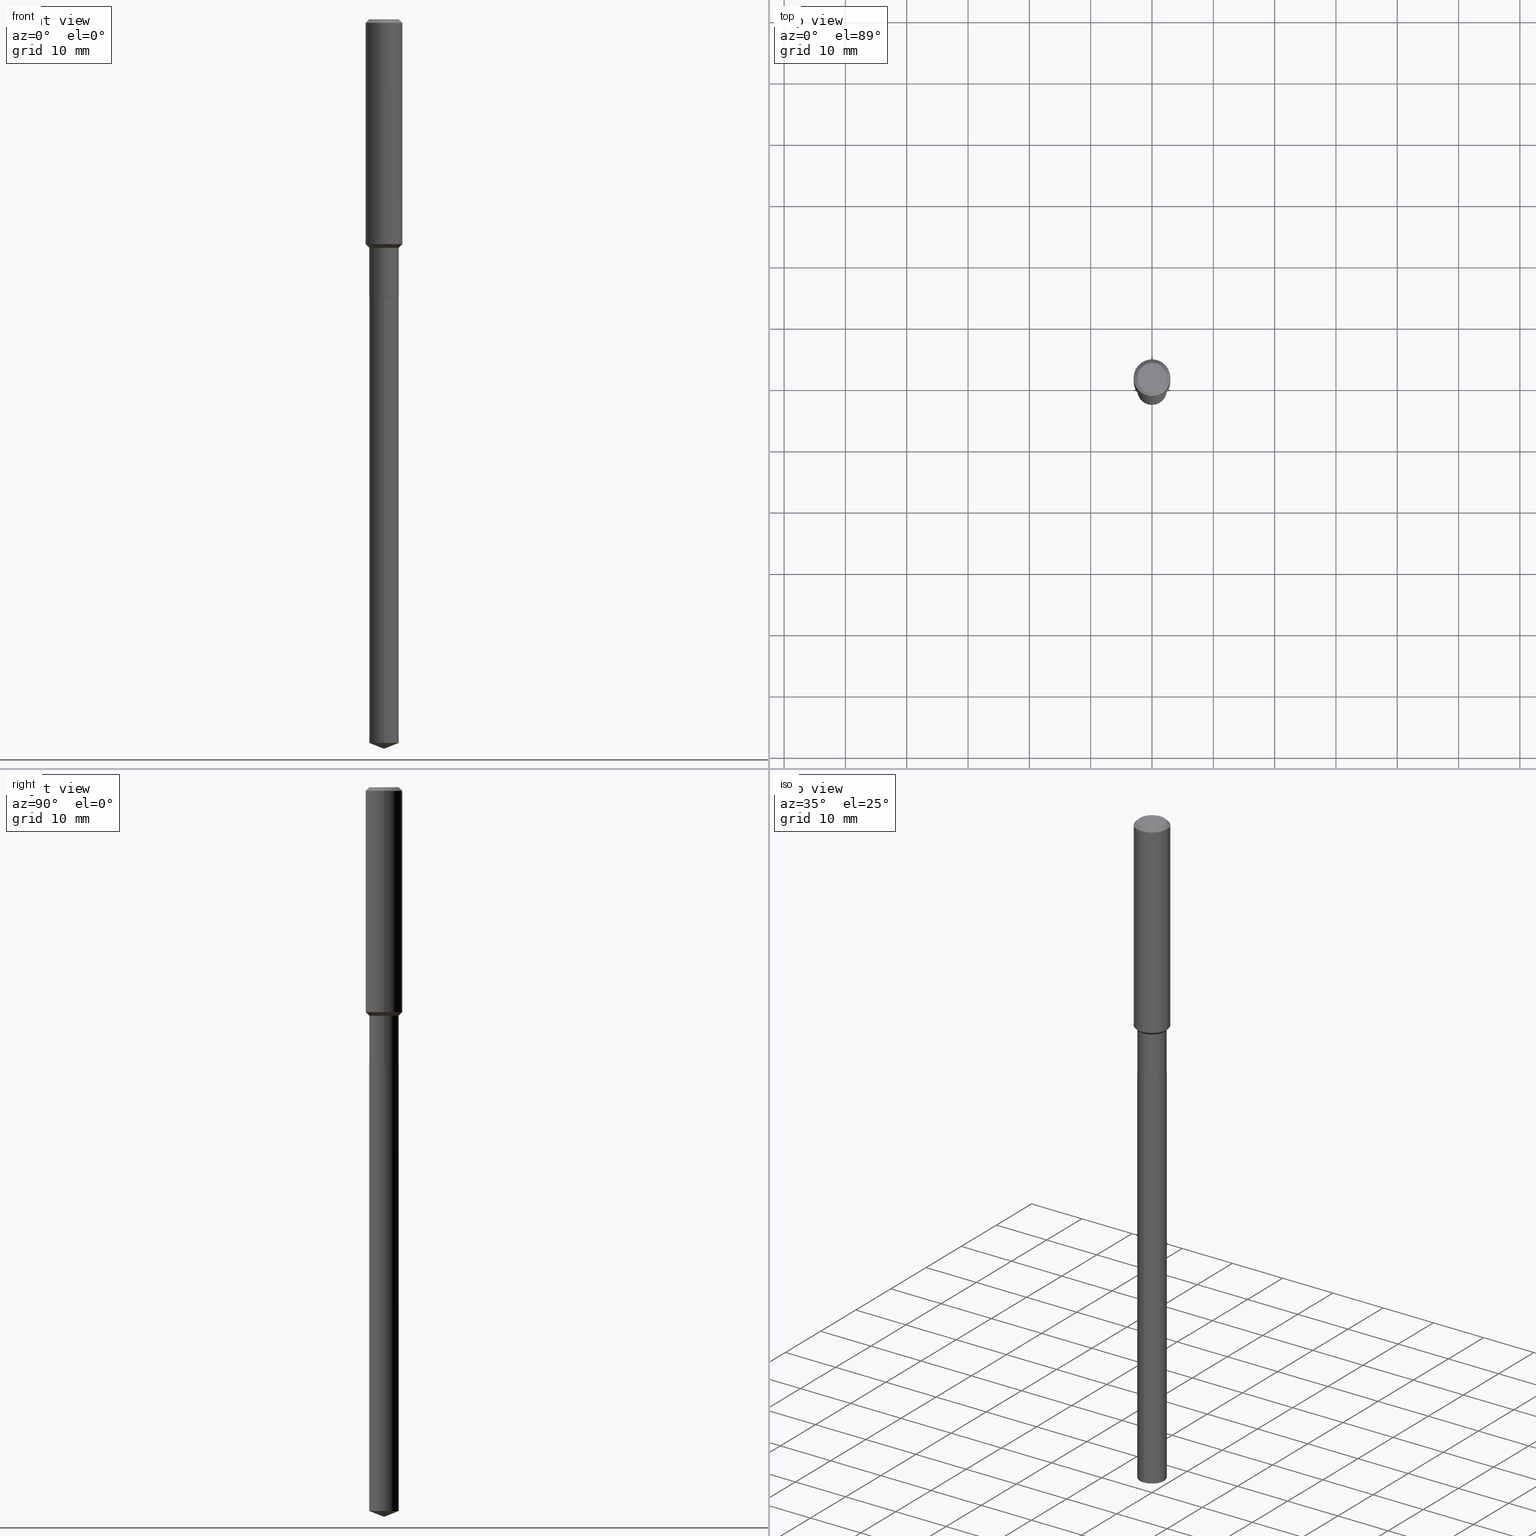
[diagram: canonical four-view strip — front | top / right | iso, engineering-drawing reading convention]
A machine part, canonical four-view strip (front | top / right | iso — engineering-drawing reading convention). The complete STEP part file that produces these views, byte-faithful:
ISO-10303-21;
HEADER;
FILE_DESCRIPTION (( 'STEP AP203' ),
    '1' );
FILE_NAME ('66727.STEP',
    '2024-04-25T04:40:25',
    ( '' ),
    ( '' ),
    'SwSTEP 2.0',
    'SolidWorks 2023',
    '' );
FILE_SCHEMA (( 'CONFIG_CONTROL_DESIGN' ));
ENDSEC;

DATA;
#1 = DIRECTION ( 'NONE',  ( 1.000000000000000000, -6.982962677686266711E-15, 0.000000000000000000 ) ) ;
#2 = EDGE_CURVE ( 'NONE', #72, #170, #306, .T. ) ;
#3 = ORIENTED_EDGE ( 'NONE', *, *, #266, .T. ) ;
#4 = CARTESIAN_POINT ( 'NONE',  ( -6.598899730413084303E-16, -0.09450000000000620404, -1.779499999999998527 ) ) ;
#5 = EDGE_LOOP ( 'NONE', ( #240, #195, #453, #149 ) ) ;
#6 = DIRECTION ( 'NONE',  ( 2.445477424987146413E-29, -3.491468996228115319E-15, -1.000000000000000000 ) ) ;
#7 = VERTEX_POINT ( 'NONE', #468 ) ;
#8 = ADVANCED_FACE ( 'NONE', ( #17 ), #307, .T. ) ;
#9 = AXIS2_PLACEMENT_3D ( 'NONE', #442, #298, #439 ) ;
#10 = DIMENSIONAL_EXPONENTS ( 1.000000000000000000, 0.000000000000000000, 0.000000000000000000, 0.000000000000000000, 0.000000000000000000, 0.000000000000000000, 0.000000000000000000 ) ;
#11 = DATE_AND_TIME ( #94, #419 ) ;
#12 = ORIENTED_EDGE ( 'NONE', *, *, #24, .F. ) ;
#13 = CARTESIAN_POINT ( 'NONE',  ( 4.351711740606446955E-29, -6.213091042471373382E-15, -1.779499999999998527 ) ) ;
#14 = CARTESIAN_POINT ( 'NONE',  ( -8.482159238011494275E-28, 1.211018550893073187E-13, 34.68507874015747916 ) ) ;
#15 = APPLICATION_PROTOCOL_DEFINITION ( 'international standard', 'config_control_design', 1994, #310 ) ;
#16 = ADVANCED_FACE ( 'NONE', ( #135 ), #136, .T. ) ;
#17 = FACE_OUTER_BOUND ( 'NONE', #366, .T. ) ;
#18 = VECTOR ( 'NONE', #77, 39.37007874015748854 ) ;
#19 = ADVANCED_FACE ( 'NONE', ( #125 ), #200, .T. ) ;
#20 = CARTESIAN_POINT ( 'NONE',  ( 3.531256956131335232E-29, -5.041699053289499522E-15, -1.443999999999999062 ) ) ;
#21 = ORIENTED_EDGE ( 'NONE', *, *, #142, .T. ) ;
#22 = APPROVAL_DATE_TIME ( #11, #386 ) ;
#23 = CARTESIAN_POINT ( 'NONE',  ( 0.09399999999999998634, -6.869489534173882389E-15, -1.779499999999998527 ) ) ;
#24 = EDGE_CURVE ( 'NONE', #30, #174, #338, .T. ) ;
#25 = CARTESIAN_POINT ( 'NONE',  ( 5.776197320209327532E-31, -8.246878922347559293E-17, -0.02362000000000014088 ) ) ;
#26 = ADVANCED_FACE ( 'NONE', ( #238 ), #482, .T. ) ;
#27 = PERSON_AND_ORGANIZATION_ROLE ( 'classification_officer' ) ;
#28 = DIRECTION ( 'NONE',  ( -2.445477424987146974E-29, 3.491468996228114924E-15, 1.000000000000000000 ) ) ;
#29 = CONICAL_SURFACE ( 'NONE', #302, 0.1180999999999999966, 0.7853981633974460586 ) ;
#30 = VERTEX_POINT ( 'NONE', #284 ) ;
#31 = DIRECTION ( 'NONE',  ( 2.445468806185136597E-29, -3.491481338843145583E-15, -1.000000000000000000 ) ) ;
#32 = VERTEX_POINT ( 'NONE', #433 ) ;
#33 = PERSON_AND_ORGANIZATION ( #48, #168 ) ;
#34 = EDGE_CURVE ( 'NONE', #174, #32, #347, .T. ) ;
#35 = DIRECTION ( 'NONE',  ( -6.982962677686265922E-15, -1.000000000000000000, 5.781688875479922944E-15 ) ) ;
#36 = ORIENTED_EDGE ( 'NONE', *, *, #410, .F. ) ;
#37 = DIRECTION ( 'NONE',  ( -2.445468806185136597E-29, 3.491481338843145583E-15, 1.000000000000000000 ) ) ;
#38 = EDGE_CURVE ( 'NONE', #336, #402, #316, .T. ) ;
#39 = AXIS2_PLACEMENT_3D ( 'NONE', #295, #365, #111 ) ;
#40 = ORIENTED_EDGE ( 'NONE', *, *, #107, .T. ) ;
#41 = CARTESIAN_POINT ( 'NONE',  ( 3.531256956131335232E-29, -5.041699053289499522E-15, -1.443999999999999062 ) ) ;
#42 = ORIENTED_EDGE ( 'NONE', *, *, #213, .F. ) ;
#43 = FACE_OUTER_BOUND ( 'NONE', #438, .T. ) ;
#44 = CARTESIAN_POINT ( 'NONE',  ( -0.1180999999999999966, 7.422191030112725094E-16, -0.02362000000000014088 ) ) ;
#45 = ADVANCED_FACE ( 'NONE', ( #55 ), #435, .T. ) ;
#46 = CARTESIAN_POINT ( 'NONE',  ( -0.09399999999999998634, -5.542531643682768201E-15, -1.779499999999998527 ) ) ;
#47 = CIRCLE ( 'NONE', #490, 0.09449999999999995903 ) ;
#48 = PERSON ( 'UNSPECIFIED', 'UNSPECIFIED', 'UNSPECIFIED', ('UNSPECIFIED'), ('UNSPECIFIED'), ('UNSPECIFIED') ) ;
#49 = CARTESIAN_POINT ( 'NONE',  ( 1.136601462681407655E-28, -1.622758588389320195E-14, -4.647775460054386798 ) ) ;
#50 = EDGE_LOOP ( 'NONE', ( #21, #81, #212, #247 ) ) ;
#51 = CARTESIAN_POINT ( 'NONE',  ( 5.776197320209327532E-31, -8.246878922347559293E-17, -0.02362000000000014088 ) ) ;
#52 = ADVANCED_FACE ( 'NONE', ( #285 ), #95, .T. ) ;
#53 = VECTOR ( 'NONE', #85, 39.37007874015748143 ) ;
#54 = CARTESIAN_POINT ( 'NONE',  ( 4.351711740606446955E-29, -6.213091042471373382E-15, -1.779499999999998527 ) ) ;
#55 = FACE_OUTER_BOUND ( 'NONE', #138, .T. ) ;
#56 = EDGE_CURVE ( 'NONE', #64, #224, #462, .T. ) ;
#57 = DIRECTION ( 'NONE',  ( -1.000000000000000000, 6.982962677686265922E-15, -4.876176775795935793E-29 ) ) ;
#58 = CARTESIAN_POINT ( 'NONE',  ( -0.09447999999999998066, 7.009847083995354710E-16, -1.928573779297727792E-17 ) ) ;
#59 = DIRECTION ( 'NONE',  ( 1.000000000000000000, -6.982962677686263555E-15, 0.000000000000000000 ) ) ;
#60 = AXIS2_PLACEMENT_3D ( 'NONE', #341, #377, #1 ) ;
#61 = CARTESIAN_POINT ( 'NONE',  ( 7.963035208442355086E-29, -1.041470292763339013E-15, -1.779499999999998971 ) ) ;
#62 = CC_DESIGN_PERSON_AND_ORGANIZATION_ASSIGNMENT ( #156, #314, ( #422 ) ) ;
#63 = CARTESIAN_POINT ( 'NONE',  ( 4.351711740606446955E-29, -6.213091042471373382E-15, -1.779499999999998527 ) ) ;
#64 = VERTEX_POINT ( 'NONE', #360 ) ;
#65 = PERSON_AND_ORGANIZATION ( #48, #168 ) ;
#66 = AXIS2_PLACEMENT_3D ( 'NONE', #41, #185, #374 ) ;
#67 = CARTESIAN_POINT ( 'NONE',  ( 5.776197320209327532E-31, -8.246878922347559293E-17, -0.02362000000000014088 ) ) ;
#68 = ORIENTED_EDGE ( 'NONE', *, *, #89, .F. ) ;
#69 = VECTOR ( 'NONE', #457, 39.37007874015748143 ) ;
#70 = CALENDAR_DATE ( 2024, 25, 4 ) ;
#71 = DIRECTION ( 'NONE',  ( -2.445468806185136877E-29, 3.491481338843145188E-15, 1.000000000000000000 ) ) ;
#72 = VERTEX_POINT ( 'NONE', #58 ) ;
#73 = EDGE_CURVE ( 'NONE', #7, #103, #164, .T. ) ;
#74 = CC_DESIGN_APPROVAL ( #287, ( #226 ) ) ;
#75 = CYLINDRICAL_SURFACE ( 'NONE', #405, 0.09449999999999997291 ) ;
#76 = ORIENTED_EDGE ( 'NONE', *, *, #24, .T. ) ;
#77 = DIRECTION ( 'NONE',  ( -6.497071151882111159E-15, -0.9304175679820232414, 0.3665012267243003552 ) ) ;
#78 = CIRCLE ( 'NONE', #332, 0.09399999999999998634 ) ;
#79 = EDGE_LOOP ( 'NONE', ( #301, #117, #363, #485 ) ) ;
#80 = CARTESIAN_POINT ( 'NONE',  ( 7.943927676866505497E-29, -1.068833365513114813E-15, -1.779499999999998971 ) ) ;
#81 = ORIENTED_EDGE ( 'NONE', *, *, #446, .T. ) ;
#82 = CARTESIAN_POINT ( 'NONE',  ( -8.482159238011494275E-28, 1.211018550893073187E-13, 34.68507874015747916 ) ) ;
#83 = APPROVAL_PERSON_ORGANIZATION ( #65, #287, #479 ) ;
#84 = AXIS2_PLACEMENT_3D ( 'NONE', #445, #483, #146 ) ;
#85 = DIRECTION ( 'NONE',  ( -2.445468806185136877E-29, 3.491481338843145188E-15, 1.000000000000000000 ) ) ;
#86 = ORIENTED_EDGE ( 'NONE', *, *, #89, .T. ) ;
#87 = APPROVAL_ROLE ( '' ) ;
#88 = AXIS2_PLACEMENT_3D ( 'NONE', #54, #204, #353 ) ;
#89 = EDGE_CURVE ( 'NONE', #120, #293, #47, .T. ) ;
#90 = FACE_OUTER_BOUND ( 'NONE', #216, .T. ) ;
#91 = CIRCLE ( 'NONE', #171, 0.09447999999999998066 ) ;
#92 = CARTESIAN_POINT ( 'NONE',  ( -0.09449999999999995903, -4.452635127592904346E-15, -1.467599999999999349 ) ) ;
#93 = DIRECTION ( 'NONE',  ( 1.000000000000000000, -6.982962677686267499E-15, 4.875432709231658792E-29 ) ) ;
#94 = CALENDAR_DATE ( 2024, 25, 4 ) ;
#95 = CYLINDRICAL_SURFACE ( 'NONE', #155, 0.1181000000000000799 ) ;
#96 = PRODUCT_DEFINITION_SHAPE ( 'NONE', 'NONE',  #422 ) ;
#97 = DIRECTION ( 'NONE',  ( -2.445468806185136597E-29, 3.491481338843145583E-15, 1.000000000000000000 ) ) ;
#98 = AXIS2_PLACEMENT_3D ( 'NONE', #139, #37, #182 ) ;
#99 = DIRECTION ( 'NONE',  ( -2.445468806185136597E-29, 3.491481338843145583E-15, 1.000000000000000000 ) ) ;
#100 = ADVANCED_FACE ( 'NONE', ( #90 ), #130, .F. ) ;
#101 = DIRECTION ( 'NONE',  ( -2.445468806185136597E-29, 3.491481338843145583E-15, 1.000000000000000000 ) ) ;
#102 = DIRECTION ( 'NONE',  ( -2.445477424987146974E-29, 3.491468996228114924E-15, 1.000000000000000000 ) ) ;
#103 = VERTEX_POINT ( 'NONE', #278 ) ;
#104 = CARTESIAN_POINT ( 'NONE',  ( 1.107551854698093724E-28, -1.690392381018647535E-14, -4.684999999999998721 ) ) ;
#105 = EDGE_CURVE ( 'NONE', #32, #170, #373, .T. ) ;
#106 = ORIENTED_EDGE ( 'NONE', *, *, #364, .F. ) ;
#107 = EDGE_CURVE ( 'NONE', #72, #296, #205, .T. ) ;
#108 = DIRECTION ( 'NONE',  ( -2.445468806185136597E-29, 3.491481338843145583E-15, 1.000000000000000000 ) ) ;
#109 = ORIENTED_EDGE ( 'NONE', *, *, #294, .T. ) ;
#110 = PERSON_AND_ORGANIZATION_ROLE ( 'creator' ) ;
#111 = DIRECTION ( 'NONE',  ( -6.982962677686265922E-15, -1.000000000000000000, 2.890844437739961472E-15 ) ) ;
#112 = APPROVAL_DATE_TIME ( #367, #287 ) ;
#113 = DIRECTION ( 'NONE',  ( 1.000000000000000000, -6.982962677686269077E-15, 0.000000000000000000 ) ) ;
#114 = EDGE_LOOP ( 'NONE', ( #268, #194, #329 ) ) ;
#115 = EDGE_CURVE ( 'NONE', #30, #170, #328, .T. ) ;
#116 = AXIS2_PLACEMENT_3D ( 'NONE', #49, #192, #452 ) ;
#117 = ORIENTED_EDGE ( 'NONE', *, *, #115, .T. ) ;
#118 = ORIENTED_EDGE ( 'NONE', *, *, #406, .T. ) ;
#119 = DIRECTION ( 'NONE',  ( 6.982962677686265922E-15, 1.000000000000000000, -3.491468996228115319E-15 ) ) ;
#120 = VERTEX_POINT ( 'NONE', #371 ) ;
#121 = AXIS2_PLACEMENT_3D ( 'NONE', #210, #28, #326 ) ;
#122 = EDGE_CURVE ( 'NONE', #174, #30, #279, .T. ) ;
#123 = LINE ( 'NONE', #273, #407 ) ;
#124 = CARTESIAN_POINT ( 'NONE',  ( 2.358133508849003952E-46, -3.366789680499277518E-32, -9.642868896486260050E-18 ) ) ;
#125 = FACE_OUTER_BOUND ( 'NONE', #444, .T. ) ;
#126 = LOCAL_TIME ( 0, 40, 25.00000000000000000, #359 ) ;
#127 = DATE_AND_TIME ( #158, #300 ) ;
#128 = AXIS2_PLACEMENT_3D ( 'NONE', #20, #201, #59 ) ;
#129 = ADVANCED_FACE ( 'NONE', ( #412 ), #286, .T. ) ;
#130 = PLANE ( 'NONE',  #415 ) ;
#131 = COORDINATED_UNIVERSAL_TIME_OFFSET ( 5, 0, .BEHIND. ) ;
#132 = CARTESIAN_POINT ( 'NONE',  ( -6.598899730413084303E-16, -0.09450000000000620404, -1.779499999999998971 ) ) ;
#133 = DIRECTION ( 'NONE',  ( -2.445468806185136597E-29, 3.491481338843145583E-15, 1.000000000000000000 ) ) ;
#134 = COORDINATED_UNIVERSAL_TIME_OFFSET ( 5, 0, .BEHIND. ) ;
#135 = FACE_OUTER_BOUND ( 'NONE', #114, .T. ) ;
#136 = CONICAL_SURFACE ( 'NONE', #249, 99.94676754583893796, 1.195550537616115960 ) ;
#137 = DIRECTION ( 'NONE',  ( -2.445477424987146974E-29, 3.491468996228114924E-15, 1.000000000000000000 ) ) ;
#138 = EDGE_LOOP ( 'NONE', ( #414, #375, #109, #68 ) ) ;
#139 = CARTESIAN_POINT ( 'NONE',  ( 5.776197320209327532E-31, -8.246878922347559293E-17, -0.02362000000000014088 ) ) ;
#140 = APPROVAL_STATUS ( 'not_yet_approved' ) ;
#141 = CARTESIAN_POINT ( 'NONE',  ( 1.136601462681407655E-28, -1.622758588389320195E-14, -4.647775460054386798 ) ) ;
#142 = EDGE_CURVE ( 'NONE', #103, #304, #181, .T. ) ;
#143 = AXIS2_PLACEMENT_3D ( 'NONE', #281, #133, #169 ) ;
#144 = COORDINATED_UNIVERSAL_TIME_OFFSET ( 5, 0, .BEHIND. ) ;
#145 = AXIS2_PLACEMENT_3D ( 'NONE', #252, #447, #113 ) ;
#146 = DIRECTION ( 'NONE',  ( 1.000000000000000000, -6.982962677686266711E-15, 0.000000000000000000 ) ) ;
#147 = ORIENTED_EDGE ( 'NONE', *, *, #73, .T. ) ;
#148 = FACE_OUTER_BOUND ( 'NONE', #424, .T. ) ;
#149 = ORIENTED_EDGE ( 'NONE', *, *, #175, .F. ) ;
#150 = ADVANCED_FACE ( 'NONE', ( #258 ), #333, .T. ) ;
#151 = ORIENTED_EDGE ( 'NONE', *, *, #184, .F. ) ;
#152 = CARTESIAN_POINT ( 'NONE',  ( 4.351711740606448076E-29, -6.213091042471374170E-15, -1.779499999999998971 ) ) ;
#153 = DIRECTION ( 'NONE',  ( -6.982962677686265922E-15, -1.000000000000000000, 2.890844437739961472E-15 ) ) ;
#154 = CARTESIAN_POINT ( 'NONE',  ( 1.184526534864006961E-28, -1.581118461183784459E-14, -4.684999999999998721 ) ) ;
#155 = AXIS2_PLACEMENT_3D ( 'NONE', #391, #101, #471 ) ;
#156 = PERSON_AND_ORGANIZATION ( #48, #168 ) ;
#157 = ORIENTED_EDGE ( 'NONE', *, *, #264, .T. ) ;
#158 = CALENDAR_DATE ( 2024, 25, 4 ) ;
#159 = CARTESIAN_POINT ( 'NONE',  ( 0.1181000000000000799, -8.246878922347486570E-16, 5.758764772215004644E-30 ) ) ;
#160 =( GEOMETRIC_REPRESENTATION_CONTEXT ( 3 ) GLOBAL_UNCERTAINTY_ASSIGNED_CONTEXT ( ( #206 ) ) GLOBAL_UNIT_ASSIGNED_CONTEXT ( ( #432, #280, #467 ) ) REPRESENTATION_CONTEXT ( 'NONE', 'WORKASPACE' ) );
#161 = PERSON_AND_ORGANIZATION ( #48, #168 ) ;
#162 = DIRECTION ( 'NONE',  ( 1.000000000000000000, -6.982962677686265922E-15, 4.876176775795935793E-29 ) ) ;
#163 = VECTOR ( 'NONE', #321, 39.37007874015748854 ) ;
#164 = LINE ( 'NONE', #23, #163 ) ;
#165 = ORIENTED_EDGE ( 'NONE', *, *, #441, .T. ) ;
#166 = DATE_AND_TIME ( #239, #322 ) ;
#167 = DIRECTION ( 'NONE',  ( -2.445468806185136597E-29, 3.491481338843145583E-15, 1.000000000000000000 ) ) ;
#168 = ORGANIZATION ( 'UNSPECIFIED', 'UNSPECIFIED', '' ) ;
#169 = DIRECTION ( 'NONE',  ( 1.000000000000000000, -6.982962677686269077E-15, 0.000000000000000000 ) ) ;
#170 = VERTEX_POINT ( 'NONE', #256 ) ;
#171 = AXIS2_PLACEMENT_3D ( 'NONE', #486, #246, #480 ) ;
#172 = ADVANCED_FACE ( 'NONE', ( #437 ), #75, .T. ) ;
#173 = CARTESIAN_POINT ( 'NONE',  ( 0.1181000000000001632, -5.866386945524249362E-15, -1.443999999999999062 ) ) ;
#174 = VERTEX_POINT ( 'NONE', #173 ) ;
#175 = EDGE_CURVE ( 'NONE', #224, #402, #222, .T. ) ;
#176 = DIRECTION ( 'NONE',  ( -2.445468806185136597E-29, 3.491481338843145583E-15, 1.000000000000000000 ) ) ;
#177 = ORIENTED_EDGE ( 'NONE', *, *, #105, .T. ) ;
#178 = SHAPE_DEFINITION_REPRESENTATION ( #96, #244 ) ;
#179 = CARTESIAN_POINT ( 'NONE',  ( 4.351711740606446955E-29, -6.213091042471373382E-15, -1.779499999999998527 ) ) ;
#180 = ORIENTED_EDGE ( 'NONE', *, *, #270, .F. ) ;
#181 = CIRCLE ( 'NONE', #84, 0.09449999999999998679 ) ;
#182 = DIRECTION ( 'NONE',  ( 1.000000000000000000, -6.982962677686266711E-15, 0.000000000000000000 ) ) ;
#183 = EDGE_LOOP ( 'NONE', ( #426, #372, #225, #259 ) ) ;
#184 = EDGE_CURVE ( 'NONE', #170, #32, #271, .T. ) ;
#185 = DIRECTION ( 'NONE',  ( -2.445468806185136597E-29, 3.491481338843145583E-15, 1.000000000000000000 ) ) ;
#186 = ORIENTED_EDGE ( 'NONE', *, *, #188, .T. ) ;
#187 = DIRECTION ( 'NONE',  ( -1.000000000000000000, 6.982962677686266711E-15, 0.000000000000000000 ) ) ;
#188 = EDGE_CURVE ( 'NONE', #296, #72, #91, .T. ) ;
#189 = DIRECTION ( 'NONE',  ( -6.982962677686265922E-15, -1.000000000000000000, 3.498627837350040510E-15 ) ) ;
#190 = CONICAL_SURFACE ( 'NONE', #9, 0.09449999999999995903, 0.7853981633974472798 ) ;
#191 = ORIENTED_EDGE ( 'NONE', *, *, #364, .T. ) ;
#192 = DIRECTION ( 'NONE',  ( -2.445477424987146974E-29, 3.491468996228114924E-15, 1.000000000000000000 ) ) ;
#193 = CC_DESIGN_PERSON_AND_ORGANIZATION_ASSIGNMENT ( #403, #110, ( #434 ) ) ;
#194 = ORIENTED_EDGE ( 'NONE', *, *, #213, .T. ) ;
#195 = ORIENTED_EDGE ( 'NONE', *, *, #196, .T. ) ;
#196 = EDGE_CURVE ( 'NONE', #64, #336, #198, .T. ) ;
#197 = PERSON_AND_ORGANIZATION_ROLE ( 'design_owner' ) ;
#198 = CIRCLE ( 'NONE', #344, 0.09449999999999998679 ) ;
#199 = PRODUCT_RELATED_PRODUCT_CATEGORY ( 'detail', '', ( #397 ) ) ;
#200 = CYLINDRICAL_SURFACE ( 'NONE', #211, 0.1181000000000000799 ) ;
#201 = DIRECTION ( 'NONE',  ( -2.445468806185136597E-29, 3.491481338843145583E-15, 1.000000000000000000 ) ) ;
#202 = APPROVAL_PERSON_ORGANIZATION ( #318, #368, #470 ) ;
#203 = APPROVAL_STATUS ( 'not_yet_approved' ) ;
#204 = DIRECTION ( 'NONE',  ( -2.445468806185136597E-29, 3.491481338843145583E-15, 1.000000000000000000 ) ) ;
#205 = CIRCLE ( 'NONE', #484, 0.09447999999999998066 ) ;
#206 = UNCERTAINTY_MEASURE_WITH_UNIT (LENGTH_MEASURE( 1.000000000000000082E-05 ), #432, 'distance_accuracy_value', 'NONE');
#207 = DIRECTION ( 'NONE',  ( -0.7071067811865467956, 7.493145998870351005E-15, 0.7071067811865482389 ) ) ;
#208 = CARTESIAN_POINT ( 'NONE',  ( 6.714628852933380677E-16, 0.09449999999999378342, -1.779499999999999416 ) ) ;
#209 = DIRECTION ( 'NONE',  ( -2.438088387897960049E-29, 3.491481338843145188E-15, 1.000000000000000000 ) ) ;
#210 = CARTESIAN_POINT ( 'NONE',  ( 4.351711740606448637E-29, -6.213091042471374170E-15, -1.779499999999999194 ) ) ;
#211 = AXIS2_PLACEMENT_3D ( 'NONE', #465, #319, #388 ) ;
#212 = ORIENTED_EDGE ( 'NONE', *, *, #264, .F. ) ;
#213 = EDGE_CURVE ( 'NONE', #274, #336, #291, .T. ) ;
#214 = CALENDAR_DATE ( 2024, 25, 4 ) ;
#215 = CARTESIAN_POINT ( 'NONE',  ( 1.145706173606478143E-28, -1.635753224732871834E-14, -4.684999999999999609 ) ) ;
#216 = EDGE_LOOP ( 'NONE', ( #345, #180 ) ) ;
#217 = PERSON_AND_ORGANIZATION ( #48, #168 ) ;
#218 = DIRECTION ( 'NONE',  ( 1.000000000000000000, -6.982962677686266711E-15, 4.876176775795935793E-29 ) ) ;
#219 = ORIENTED_EDGE ( 'NONE', *, *, #115, .F. ) ;
#220 = DATE_TIME_ROLE ( 'classification_date' ) ;
#221 = CARTESIAN_POINT ( 'NONE',  ( 0.000000000000000000, 0.000000000000000000, 0.000000000000000000 ) ) ;
#222 = CIRCLE ( 'NONE', #354, 0.09449999999999998679 ) ;
#223 = DIRECTION ( 'NONE',  ( -6.982962677686265922E-15, -1.000000000000000000, 2.890844437739961472E-15 ) ) ;
#224 = VERTEX_POINT ( 'NONE', #289 ) ;
#225 = ORIENTED_EDGE ( 'NONE', *, *, #315, .F. ) ;
#226 = SECURITY_CLASSIFICATION ( '', '', #255 ) ;
#227 = DIRECTION ( 'NONE',  ( -2.445477424987146974E-29, 3.491468996228114924E-15, 1.000000000000000000 ) ) ;
#228 = VECTOR ( 'NONE', #313, 39.37007874015748143 ) ;
#229 = ADVANCED_FACE ( 'NONE', ( #148 ), #190, .T. ) ;
#230 = CARTESIAN_POINT ( 'NONE',  ( -6.598899730412382216E-16, -0.09450000000001619604, -4.647775460054386798 ) ) ;
#231 = EDGE_LOOP ( 'NONE', ( #409, #355 ) ) ;
#232 = CC_DESIGN_PERSON_AND_ORGANIZATION_ASSIGNMENT ( #217, #323, ( #434 ) ) ;
#233 = ORIENTED_EDGE ( 'NONE', *, *, #441, .F. ) ;
#234 = DIRECTION ( 'NONE',  ( 1.000000000000000000, 0.000000000000000000, 0.000000000000000000 ) ) ;
#235 = DIRECTION ( 'NONE',  ( -2.445477424987146974E-29, 3.491468996228114924E-15, 1.000000000000000000 ) ) ;
#236 = AXIS2_PLACEMENT_3D ( 'NONE', #80, #6, #119 ) ;
#237 = LINE ( 'NONE', #346, #297 ) ;
#238 = FACE_OUTER_BOUND ( 'NONE', #311, .T. ) ;
#239 = CALENDAR_DATE ( 2024, 25, 4 ) ;
#240 = ORIENTED_EDGE ( 'NONE', *, *, #56, .F. ) ;
#241 = CARTESIAN_POINT ( 'NONE',  ( 0.000000000000000000, 0.000000000000000000, 0.000000000000000000 ) ) ;
#242 = DIRECTION ( 'NONE',  ( 1.000000000000000000, -6.982962677686266711E-15, 4.876176775795935793E-29 ) ) ;
#243 = AXIS2_PLACEMENT_3D ( 'NONE', #25, #431, #384 ) ;
#244 = ADVANCED_BREP_SHAPE_REPRESENTATION ( '66727', ( #466, #478, #370 ), #160 ) ;
#245 = DIRECTION ( 'NONE',  ( 1.000000000000000000, -6.982962677686269077E-15, 0.000000000000000000 ) ) ;
#246 = DIRECTION ( 'NONE',  ( -2.445468806185136597E-29, 3.491481338843145583E-15, 1.000000000000000000 ) ) ;
#247 = ORIENTED_EDGE ( 'NONE', *, *, #294, .F. ) ;
#248 = LINE ( 'NONE', #408, #423 ) ;
#249 = AXIS2_PLACEMENT_3D ( 'NONE', #14, #235, #395 ) ;
#250 = EDGE_LOOP ( 'NONE', ( #40, #186 ) ) ;
#251 = VECTOR ( 'NONE', #379, 39.37007874015748143 ) ;
#252 = CARTESIAN_POINT ( 'NONE',  ( 3.588970019957305036E-29, -5.124098012886198435E-15, -1.467599999999999349 ) ) ;
#253 = VECTOR ( 'NONE', #207, 39.37007874015748143 ) ;
#254 = ORIENTED_EDGE ( 'NONE', *, *, #107, .F. ) ;
#255 = SECURITY_CLASSIFICATION_LEVEL ( 'unclassified' ) ;
#256 = CARTESIAN_POINT ( 'NONE',  ( -0.1180999999999999966, -1.722932950323807912E-15, -0.02362000000000014088 ) ) ;
#257 = ORIENTED_EDGE ( 'NONE', *, *, #188, .F. ) ;
#258 = FACE_OUTER_BOUND ( 'NONE', #5, .T. ) ;
#259 = ORIENTED_EDGE ( 'NONE', *, *, #38, .F. ) ;
#260 = CLOSED_SHELL ( 'NONE', ( #129, #380, #52, #229, #172, #45, #26, #19, #282, #469, #100, #8 ) ) ;
#261 = APPLICATION_CONTEXT ( 'configuration controlled 3d designs of mechanical parts and assemblies' ) ;
#262 = VECTOR ( 'NONE', #357, 39.37007874015748143 ) ;
#263 = CARTESIAN_POINT ( 'NONE',  ( 0.09449999999999995903, -5.783987985927550449E-15, -1.467599999999999349 ) ) ;
#264 = EDGE_CURVE ( 'NONE', #293, #120, #463, .T. ) ;
#265 = LINE ( 'NONE', #305, #53 ) ;
#266 = EDGE_CURVE ( 'NONE', #296, #32, #248, .T. ) ;
#267 = APPROVAL_PERSON_ORGANIZATION ( #161, #386, #87 ) ;
#268 = ORIENTED_EDGE ( 'NONE', *, *, #406, .F. ) ;
#269 = VECTOR ( 'NONE', #436, 39.37007874015748143 ) ;
#270 = EDGE_CURVE ( 'NONE', #327, #7, #78, .T. ) ;
#271 = CIRCLE ( 'NONE', #98, 0.1180999999999999966 ) ;
#272 = ADVANCED_FACE ( 'NONE', ( #362 ), #404, .T. ) ;
#273 = CARTESIAN_POINT ( 'NONE',  ( -0.09399999999999998634, -5.545180870856878614E-15, -1.779499999999998527 ) ) ;
#274 = VERTEX_POINT ( 'NONE', #215 ) ;
#275 =( LENGTH_UNIT ( ) NAMED_UNIT ( * ) SI_UNIT ( $, .METRE. ) );
#276 = CARTESIAN_POINT ( 'NONE',  ( 4.716267017698007905E-46, -6.733579360998555036E-32, -1.928573779297252010E-17 ) ) ;
#277 = APPROVAL_DATE_TIME ( #127, #368 ) ;
#278 = CARTESIAN_POINT ( 'NONE',  ( 0.09449999999999998679, -6.871235274843304682E-15, -1.778999999999999027 ) ) ;
#279 = CIRCLE ( 'NONE', #66, 0.1181000000000001632 ) ;
#280 =( NAMED_UNIT ( * ) PLANE_ANGLE_UNIT ( ) SI_UNIT ( $, .RADIAN. ) );
#281 = CARTESIAN_POINT ( 'NONE',  ( 3.588970019957305036E-29, -5.124098012886198435E-15, -1.467599999999999349 ) ) ;
#282 = ADVANCED_FACE ( 'NONE', ( #476 ), #473, .T. ) ;
#283 = AXIS2_PLACEMENT_3D ( 'NONE', #13, #99, #343 ) ;
#284 = CARTESIAN_POINT ( 'NONE',  ( -0.1181000000000001632, -4.202548082356820536E-15, -1.443999999999999062 ) ) ;
#285 = FACE_OUTER_BOUND ( 'NONE', #79, .T. ) ;
#286 = CONICAL_SURFACE ( 'NONE', #317, 0.09399999999999998634, 0.7853981633978239785 ) ;
#287 = APPROVAL ( #140, 'UNSPECIFIED' ) ;
#288 = DIRECTION ( 'NONE',  ( 1.000000000000000000, -6.982962677686272233E-15, 0.000000000000000000 ) ) ;
#289 = CARTESIAN_POINT ( 'NONE',  ( 6.714628852934085722E-16, 0.09449999999999375566, -1.779499999999999194 ) ) ;
#290 = EDGE_LOOP ( 'NONE', ( #257, #3, #177, #481 ) ) ;
#291 = LINE ( 'NONE', #104, #18 ) ;
#292 = CLOSED_SHELL ( 'NONE', ( #272, #392, #16, #150, #385 ) ) ;
#293 = VERTEX_POINT ( 'NONE', #263 ) ;
#294 = EDGE_CURVE ( 'NONE', #103, #293, #265, .T. ) ;
#295 = CARTESIAN_POINT ( 'NONE',  ( 4.351711740606448637E-29, -6.213091042471374170E-15, -1.779499999999999194 ) ) ;
#296 = VERTEX_POINT ( 'NONE', #418 ) ;
#297 = VECTOR ( 'NONE', #312, 39.37007874015748143 ) ;
#298 = DIRECTION ( 'NONE',  ( -2.445468806185136597E-29, 3.491481338843145583E-15, 1.000000000000000000 ) ) ;
#299 = ORIENTED_EDGE ( 'NONE', *, *, #122, .F. ) ;
#300 = LOCAL_TIME ( 0, 40, 25.00000000000000000, #134 ) ;
#301 = ORIENTED_EDGE ( 'NONE', *, *, #122, .T. ) ;
#302 = AXIS2_PLACEMENT_3D ( 'NONE', #51, #489, #416 ) ;
#303 = DIRECTION ( 'NONE',  ( -2.445477424987146974E-29, 3.491468996228114924E-15, 1.000000000000000000 ) ) ;
#304 = VERTEX_POINT ( 'NONE', #339 ) ;
#305 = CARTESIAN_POINT ( 'NONE',  ( 0.09449999999999997291, -6.598899730413520148E-16, 4.607987053127158259E-30 ) ) ;
#306 = LINE ( 'NONE', #44, #269 ) ;
#307 = CONICAL_SURFACE ( 'NONE', #88, 0.09399999999999998634, 0.7853981633978239785 ) ;
#308 = LINE ( 'NONE', #154, #69 ) ;
#309 = LENGTH_MEASURE_WITH_UNIT ( LENGTH_MEASURE( 0.02539999999999999897 ), #275 );
#310 = APPLICATION_CONTEXT ( 'configuration controlled 3d designs of mechanical parts and assemblies' ) ;
#311 = EDGE_LOOP ( 'NONE', ( #233, #86, #191, #12 ) ) ;
#312 = DIRECTION ( 'NONE',  ( -2.445468806185136877E-29, 3.491481338843145188E-15, 1.000000000000000000 ) ) ;
#313 = DIRECTION ( 'NONE',  ( -2.445468806185136877E-29, 3.491481338843145188E-15, 1.000000000000000000 ) ) ;
#314 = PERSON_AND_ORGANIZATION_ROLE ( 'creator' ) ;
#315 = EDGE_CURVE ( 'NONE', #402, #224, #451, .T. ) ;
#316 = LINE ( 'NONE', #132, #421 ) ;
#317 = AXIS2_PLACEMENT_3D ( 'NONE', #179, #176, #330 ) ;
#318 = PERSON_AND_ORGANIZATION ( #48, #168 ) ;
#319 = DIRECTION ( 'NONE',  ( -2.445468806185136597E-29, 3.491481338843145583E-15, 1.000000000000000000 ) ) ;
#320 = DATE_TIME_ROLE ( 'creation_date' ) ;
#321 = DIRECTION ( 'NONE',  ( 0.7071067811868130271, -2.468850131085038979E-15, 0.7071067811862817853 ) ) ;
#322 = LOCAL_TIME ( 0, 40, 25.00000000000000000, #131 ) ;
#323 = PERSON_AND_ORGANIZATION_ROLE ( 'design_supplier' ) ;
#324 = CARTESIAN_POINT ( 'NONE',  ( 0.000000000000000000, 0.000000000000000000, 0.000000000000000000 ) ) ;
#325 = AXIS2_PLACEMENT_3D ( 'NONE', #152, #303, #153 ) ;
#326 = DIRECTION ( 'NONE',  ( -6.982962677686265922E-15, -1.000000000000000000, 2.890844437739961472E-15 ) ) ;
#327 = VERTEX_POINT ( 'NONE', #46 ) ;
#328 = LINE ( 'NONE', #411, #443 ) ;
#329 = ORIENTED_EDGE ( 'NONE', *, *, #196, .F. ) ;
#330 = DIRECTION ( 'NONE',  ( 1.000000000000000000, -6.982962677686272233E-15, 0.000000000000000000 ) ) ;
#331 = ORIENTED_EDGE ( 'NONE', *, *, #142, .F. ) ;
#332 = AXIS2_PLACEMENT_3D ( 'NONE', #63, #369, #288 ) ;
#333 = CYLINDRICAL_SURFACE ( 'NONE', #39, 0.09449999999999998679 ) ;
#334 = ORIENTED_EDGE ( 'NONE', *, *, #358, .F. ) ;
#335 = PLANE ( 'NONE',  #236 ) ;
#336 = VERTEX_POINT ( 'NONE', #230 ) ;
#337 = FACE_OUTER_BOUND ( 'NONE', #290, .T. ) ;
#338 = CIRCLE ( 'NONE', #128, 0.1181000000000001632 ) ;
#339 = CARTESIAN_POINT ( 'NONE',  ( -0.09449999999999998679, -4.996258772050781068E-15, -1.778999999999999027 ) ) ;
#340 = ORIENTED_EDGE ( 'NONE', *, *, #394, .F. ) ;
#341 = CARTESIAN_POINT ( 'NONE',  ( 4.350489006203355275E-29, -6.211345301801952667E-15, -1.778999999999999027 ) ) ;
#342 = CARTESIAN_POINT ( 'NONE',  ( 0.09449999999999995903, -5.783987985927550449E-15, -1.467599999999999349 ) ) ;
#343 = DIRECTION ( 'NONE',  ( 1.000000000000000000, -6.982962677686272233E-15, 0.000000000000000000 ) ) ;
#344 = AXIS2_PLACEMENT_3D ( 'NONE', #141, #137, #35 ) ;
#345 = ORIENTED_EDGE ( 'NONE', *, *, #475, .F. ) ;
#346 = CARTESIAN_POINT ( 'NONE',  ( -0.09449999999999997291, 6.714628852932944832E-16, -4.648393660290884930E-30 ) ) ;
#347 = LINE ( 'NONE', #159, #228 ) ;
#348 = APPLICATION_PROTOCOL_DEFINITION ( 'international standard', 'config_control_design', 1994, #261 ) ;
#349 = CC_DESIGN_APPROVAL ( #386, ( #422 ) ) ;
#350 = DIRECTION ( 'NONE',  ( -2.445477424987146974E-29, 3.491468996228115319E-15, 1.000000000000000000 ) ) ;
#351 = EDGE_LOOP ( 'NONE', ( #417, #254, #420, #477 ) ) ;
#352 = DESIGN_CONTEXT ( 'detailed design', #310, 'design' ) ;
#353 = DIRECTION ( 'NONE',  ( 1.000000000000000000, -6.982962677686272233E-15, 0.000000000000000000 ) ) ;
#354 = AXIS2_PLACEMENT_3D ( 'NONE', #472, #102, #223 ) ;
#355 = ORIENTED_EDGE ( 'NONE', *, *, #175, .T. ) ;
#356 = DIRECTION ( 'NONE',  ( 0.000000000000000000, 0.000000000000000000, 1.000000000000000000 ) ) ;
#357 = DIRECTION ( 'NONE',  ( -2.445477424987146974E-29, 3.491468996228115319E-15, 1.000000000000000000 ) ) ;
#358 = EDGE_CURVE ( 'NONE', #336, #64, #456, .T. ) ;
#359 = COORDINATED_UNIVERSAL_TIME_OFFSET ( 5, 0, .BEHIND. ) ;
#360 = CARTESIAN_POINT ( 'NONE',  ( 6.714628852934081777E-16, 0.09449999999998374978, -4.647775460054387686 ) ) ;
#361 = DATE_AND_TIME ( #70, #126 ) ;
#362 = FACE_OUTER_BOUND ( 'NONE', #183, .T. ) ;
#363 = ORIENTED_EDGE ( 'NONE', *, *, #105, .F. ) ;
#364 = EDGE_CURVE ( 'NONE', #293, #174, #381, .T. ) ;
#365 = DIRECTION ( 'NONE',  ( -2.445477424987146974E-29, 3.491468996228114924E-15, 1.000000000000000000 ) ) ;
#366 = EDGE_LOOP ( 'NONE', ( #36, #488, #147, #340 ) ) ;
#367 = DATE_AND_TIME ( #214, #440 ) ;
#368 = APPROVAL ( #383, 'UNSPECIFIED' ) ;
#369 = DIRECTION ( 'NONE',  ( -2.445468806185136597E-29, 3.491481338843145583E-15, 1.000000000000000000 ) ) ;
#370 = AXIS2_PLACEMENT_3D ( 'NONE', #241, #356, #234 ) ;
#371 = CARTESIAN_POINT ( 'NONE',  ( -0.09449999999999995903, -4.996258772050781068E-15, -1.467599999999999349 ) ) ;
#372 = ORIENTED_EDGE ( 'NONE', *, *, #56, .T. ) ;
#373 = CIRCLE ( 'NONE', #243, 0.1180999999999999966 ) ;
#374 = DIRECTION ( 'NONE',  ( 1.000000000000000000, -6.982962677686263555E-15, 0.000000000000000000 ) ) ;
#375 = ORIENTED_EDGE ( 'NONE', *, *, #394, .T. ) ;
#376 = CC_DESIGN_DATE_AND_TIME_ASSIGNMENT ( #361, #220, ( #226 ) ) ;
#377 = DIRECTION ( 'NONE',  ( -2.445468806185136597E-29, 3.491481338843145583E-15, 1.000000000000000000 ) ) ;
#378 = AXIS2_PLACEMENT_3D ( 'NONE', #324, #97, #242 ) ;
#379 = DIRECTION ( 'NONE',  ( 0.7071067811865467956, -2.468850131082249172E-15, 0.7071067811865482389 ) ) ;
#380 = ADVANCED_FACE ( 'NONE', ( #337 ), #29, .T. ) ;
#381 = LINE ( 'NONE', #342, #251 ) ;
#382 = ORIENTED_EDGE ( 'NONE', *, *, #410, .T. ) ;
#383 = APPROVAL_STATUS ( 'not_yet_approved' ) ;
#384 = DIRECTION ( 'NONE',  ( 1.000000000000000000, -6.982962677686266711E-15, 0.000000000000000000 ) ) ;
#385 = ADVANCED_FACE ( 'NONE', ( #454 ), #335, .F. ) ;
#386 = APPROVAL ( #203, 'UNSPECIFIED' ) ;
#387 = DIRECTION ( 'NONE',  ( 2.438088387897960049E-29, -3.491481338843145188E-15, -1.000000000000000000 ) ) ;
#388 = DIRECTION ( 'NONE',  ( 1.000000000000000000, -6.982962677686266711E-15, 4.876176775795936353E-29 ) ) ;
#389 = PLANE ( 'NONE',  #458 ) ;
#390 = CC_DESIGN_SECURITY_CLASSIFICATION ( #226, ( #434 ) ) ;
#391 = CARTESIAN_POINT ( 'NONE',  ( 0.000000000000000000, 0.000000000000000000, 0.000000000000000000 ) ) ;
#392 = ADVANCED_FACE ( 'NONE', ( #43 ), #428, .T. ) ;
#393 = MECHANICAL_CONTEXT ( 'NONE', #261, 'mechanical' ) ;
#394 = EDGE_CURVE ( 'NONE', #304, #103, #430, .T. ) ;
#395 = DIRECTION ( 'NONE',  ( -6.982962677686265922E-15, -1.000000000000000000, 3.498627837350040510E-15 ) ) ;
#396 = AXIS2_PLACEMENT_3D ( 'NONE', #67, #31, #187 ) ;
#397 = PRODUCT ( '66727', '66727', '', ( #393 ) ) ;
#398 = COORDINATED_UNIVERSAL_TIME_OFFSET ( 5, 0, .BEHIND. ) ;
#399 = CARTESIAN_POINT ( 'NONE',  ( 3.588970019957305036E-29, -5.124098012886198435E-15, -1.467599999999999349 ) ) ;
#400 = CIRCLE ( 'NONE', #283, 0.09399999999999998634 ) ;
#401 = DIRECTION ( 'NONE',  ( 0.7071067811865459074, -7.319954787623249734E-15, -0.7071067811865491270 ) ) ;
#402 = VERTEX_POINT ( 'NONE', #4 ) ;
#403 = PERSON_AND_ORGANIZATION ( #48, #168 ) ;
#404 = CYLINDRICAL_SURFACE ( 'NONE', #121, 0.09449999999999998679 ) ;
#405 = AXIS2_PLACEMENT_3D ( 'NONE', #221, #108, #218 ) ;
#406 = EDGE_CURVE ( 'NONE', #274, #64, #308, .T. ) ;
#407 = VECTOR ( 'NONE', #425, 39.37007874015748854 ) ;
#408 = CARTESIAN_POINT ( 'NONE',  ( 0.1180999999999999966, -8.926936027602933910E-16, -0.02362000000000014088 ) ) ;
#409 = ORIENTED_EDGE ( 'NONE', *, *, #315, .T. ) ;
#410 = EDGE_CURVE ( 'NONE', #327, #304, #123, .T. ) ;
#411 = CARTESIAN_POINT ( 'NONE',  ( -0.1181000000000000799, 8.391509709326788873E-16, -5.809262341591047988E-30 ) ) ;
#412 = FACE_OUTER_BOUND ( 'NONE', #449, .T. ) ;
#413 = CC_DESIGN_PERSON_AND_ORGANIZATION_ASSIGNMENT ( #33, #27, ( #226 ) ) ;
#414 = ORIENTED_EDGE ( 'NONE', *, *, #446, .F. ) ;
#415 = AXIS2_PLACEMENT_3D ( 'NONE', #61, #209, #162 ) ;
#416 = DIRECTION ( 'NONE',  ( -1.000000000000000000, 6.982962677686266711E-15, 0.000000000000000000 ) ) ;
#417 = ORIENTED_EDGE ( 'NONE', *, *, #266, .F. ) ;
#418 = CARTESIAN_POINT ( 'NONE',  ( 0.09447999999999998066, -7.704367267948738690E-16, -1.928573779296752193E-17 ) ) ;
#419 = LOCAL_TIME ( 0, 40, 25.00000000000000000, #398 ) ;
#420 = ORIENTED_EDGE ( 'NONE', *, *, #2, .T. ) ;
#421 = VECTOR ( 'NONE', #350, 39.37007874015748143 ) ;
#422 = PRODUCT_DEFINITION ( 'UNKNOWN', '', #434, #352 ) ;
#423 = VECTOR ( 'NONE', #401, 39.37007874015748143 ) ;
#424 = EDGE_LOOP ( 'NONE', ( #157, #165, #299, #106 ) ) ;
#425 = DIRECTION ( 'NONE',  ( -0.7071067811868130271, 7.493145998871311837E-15, 0.7071067811862817853 ) ) ;
#426 = ORIENTED_EDGE ( 'NONE', *, *, #358, .T. ) ;
#427 = DIRECTION ( 'NONE',  ( -2.445468806185136597E-29, 3.491481338843145583E-15, 1.000000000000000000 ) ) ;
#428 = CONICAL_SURFACE ( 'NONE', #474, 99.94676754583893796, 1.195550537616115960 ) ;
#429 = PERSON_AND_ORGANIZATION ( #48, #168 ) ;
#430 = CIRCLE ( 'NONE', #60, 0.09449999999999998679 ) ;
#431 = DIRECTION ( 'NONE',  ( -2.445468806185136597E-29, 3.491481338843145583E-15, 1.000000000000000000 ) ) ;
#432 =( CONVERSION_BASED_UNIT ( 'INCH', #309 ) LENGTH_UNIT ( ) NAMED_UNIT ( #10 ) );
#433 = CARTESIAN_POINT ( 'NONE',  ( 0.1180999999999999966, -9.071566814582237199E-16, -0.02362000000000014088 ) ) ;
#434 = PRODUCT_DEFINITION_FORMATION_WITH_SPECIFIED_SOURCE ( 'ANY', '', #397, .NOT_KNOWN. ) ;
#435 = CYLINDRICAL_SURFACE ( 'NONE', #378, 0.09449999999999997291 ) ;
#436 = DIRECTION ( 'NONE',  ( -0.7071067811865459074, 2.468850131082240100E-15, -0.7071067811865491270 ) ) ;
#437 = FACE_OUTER_BOUND ( 'NONE', #50, .T. ) ;
#438 = EDGE_LOOP ( 'NONE', ( #42, #118, #334 ) ) ;
#439 = DIRECTION ( 'NONE',  ( 1.000000000000000000, -6.982962677686269077E-15, 0.000000000000000000 ) ) ;
#440 = LOCAL_TIME ( 0, 40, 25.00000000000000000, #144 ) ;
#441 = EDGE_CURVE ( 'NONE', #120, #30, #460, .T. ) ;
#442 = CARTESIAN_POINT ( 'NONE',  ( 3.588970019957305036E-29, -5.124098012886198435E-15, -1.467599999999999349 ) ) ;
#443 = VECTOR ( 'NONE', #71, 39.37007874015748143 ) ;
#444 = EDGE_LOOP ( 'NONE', ( #219, #76, #450, #151 ) ) ;
#445 = CARTESIAN_POINT ( 'NONE',  ( 4.350489006203355275E-29, -6.211345301801952667E-15, -1.778999999999999027 ) ) ;
#446 = EDGE_CURVE ( 'NONE', #304, #120, #237, .T. ) ;
#447 = DIRECTION ( 'NONE',  ( -2.445468806185136597E-29, 3.491481338843145583E-15, 1.000000000000000000 ) ) ;
#448 = CC_DESIGN_APPROVAL ( #368, ( #434 ) ) ;
#449 = EDGE_LOOP ( 'NONE', ( #487, #382, #331, #461 ) ) ;
#450 = ORIENTED_EDGE ( 'NONE', *, *, #34, .T. ) ;
#451 = CIRCLE ( 'NONE', #325, 0.09449999999999998679 ) ;
#452 = DIRECTION ( 'NONE',  ( -6.982962677686265922E-15, -1.000000000000000000, 5.781688875479922944E-15 ) ) ;
#453 = ORIENTED_EDGE ( 'NONE', *, *, #38, .T. ) ;
#454 = FACE_OUTER_BOUND ( 'NONE', #231, .T. ) ;
#455 = CC_DESIGN_PERSON_AND_ORGANIZATION_ASSIGNMENT ( #429, #197, ( #397 ) ) ;
#456 = CIRCLE ( 'NONE', #116, 0.09449999999999998679 ) ;
#457 = DIRECTION ( 'NONE',  ( 6.611014441532057911E-15, 0.9304175679820259059, 0.3665012267242938049 ) ) ;
#458 = AXIS2_PLACEMENT_3D ( 'NONE', #124, #387, #57 ) ;
#459 = CC_DESIGN_DATE_AND_TIME_ASSIGNMENT ( #166, #320, ( #422 ) ) ;
#460 = LINE ( 'NONE', #92, #253 ) ;
#461 = ORIENTED_EDGE ( 'NONE', *, *, #73, .F. ) ;
#462 = LINE ( 'NONE', #208, #262 ) ;
#463 = CIRCLE ( 'NONE', #145, 0.09449999999999995903 ) ;
#464 = FACE_OUTER_BOUND ( 'NONE', #250, .T. ) ;
#465 = CARTESIAN_POINT ( 'NONE',  ( 0.000000000000000000, 0.000000000000000000, 0.000000000000000000 ) ) ;
#466 = MANIFOLD_SOLID_BREP ( 'Body-Move/Copy2[1]', #292 ) ;
#467 =( NAMED_UNIT ( * ) SI_UNIT ( $, .STERADIAN. ) SOLID_ANGLE_UNIT ( ) );
#468 = CARTESIAN_POINT ( 'NONE',  ( 0.09399999999999998634, -6.869489534173882389E-15, -1.779499999999998527 ) ) ;
#469 = ADVANCED_FACE ( 'NONE', ( #464 ), #389, .F. ) ;
#470 = APPROVAL_ROLE ( '' ) ;
#471 = DIRECTION ( 'NONE',  ( 1.000000000000000000, -6.982962677686266711E-15, 4.876176775795936353E-29 ) ) ;
#472 = CARTESIAN_POINT ( 'NONE',  ( 4.351711740606448076E-29, -6.213091042471374170E-15, -1.779499999999998971 ) ) ;
#473 = CONICAL_SURFACE ( 'NONE', #396, 0.1180999999999999966, 0.7853981633974460586 ) ;
#474 = AXIS2_PLACEMENT_3D ( 'NONE', #82, #227, #189 ) ;
#475 = EDGE_CURVE ( 'NONE', #7, #327, #400, .T. ) ;
#476 = FACE_OUTER_BOUND ( 'NONE', #351, .T. ) ;
#477 = ORIENTED_EDGE ( 'NONE', *, *, #184, .T. ) ;
#478 = MANIFOLD_SOLID_BREP ( 'Body-Move/Copy2[2]', #260 ) ;
#479 = APPROVAL_ROLE ( '' ) ;
#480 = DIRECTION ( 'NONE',  ( 1.000000000000000000, -6.982962677686267499E-15, 4.875432709231658792E-29 ) ) ;
#481 = ORIENTED_EDGE ( 'NONE', *, *, #2, .F. ) ;
#482 = CONICAL_SURFACE ( 'NONE', #143, 0.09449999999999995903, 0.7853981633974472798 ) ;
#483 = DIRECTION ( 'NONE',  ( -2.445468806185136597E-29, 3.491481338843145583E-15, 1.000000000000000000 ) ) ;
#484 = AXIS2_PLACEMENT_3D ( 'NONE', #276, #427, #93 ) ;
#485 = ORIENTED_EDGE ( 'NONE', *, *, #34, .F. ) ;
#486 = CARTESIAN_POINT ( 'NONE',  ( 4.716267017698007905E-46, -6.733579360998555036E-32, -1.928573779297252010E-17 ) ) ;
#487 = ORIENTED_EDGE ( 'NONE', *, *, #475, .T. ) ;
#488 = ORIENTED_EDGE ( 'NONE', *, *, #270, .T. ) ;
#489 = DIRECTION ( 'NONE',  ( 2.445468806185136597E-29, -3.491481338843145583E-15, -1.000000000000000000 ) ) ;
#490 = AXIS2_PLACEMENT_3D ( 'NONE', #399, #167, #245 ) ;
ENDSEC;
END-ISO-10303-21;
